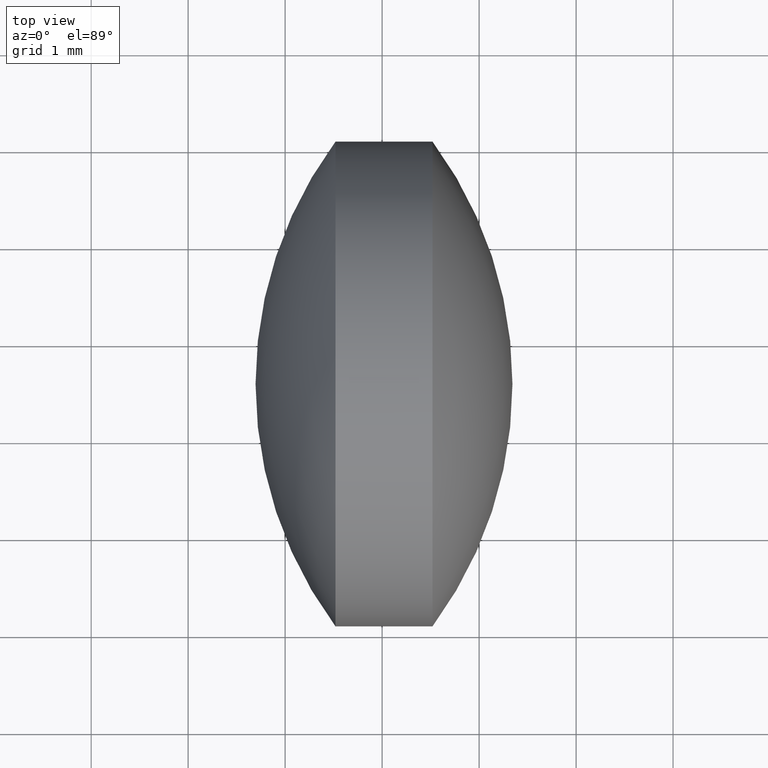
[diagram: clean part render]
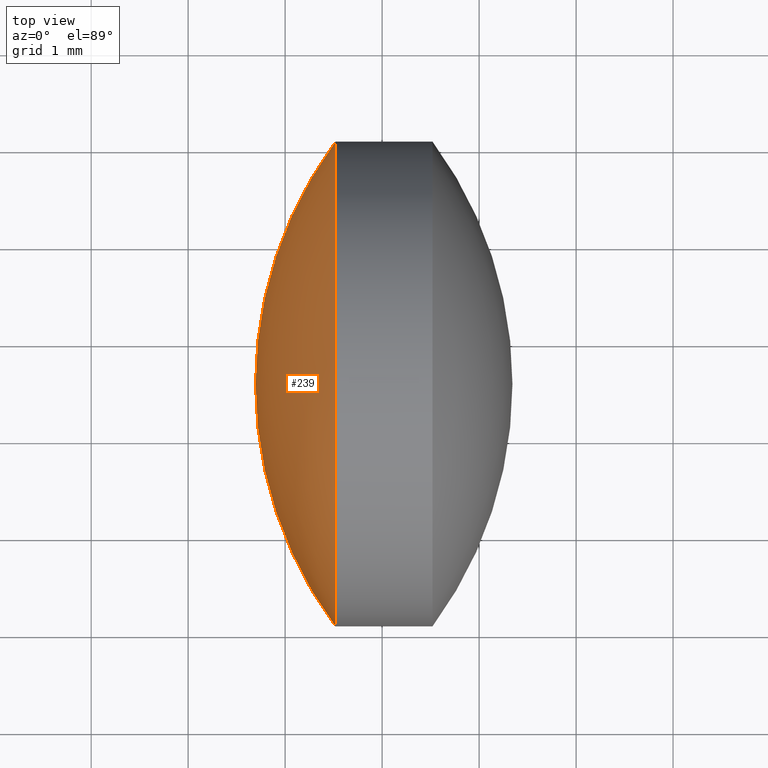
[diagram: same view with one face highlighted and labeled with its STEP entity id]
A machine part, top view. The second image highlights one B-rep face of the part: STEP entity #239.
In plain terms, the highlighted spherical surface has radius 4.202 mm.
Its self-contained STEP definition (entity closure, byte-faithful):
#1 = AXIS2_PLACEMENT_3D ( 'NONE', #3, #6, #34 ) ;
#3 = CARTESIAN_POINT ( 'NONE',  ( 19.89670792681433700, 9.570100988815884300, 0.0000000000000000000 ) ) ;
#5 = CARTESIAN_POINT ( 'NONE',  ( 16.51932948320126100, 7.070100988815897700, -3.061616997868377200E-016 ) ) ;
#6 = DIRECTION ( 'NONE',  ( 0.0000000000000000000, 0.0000000000000000000, -1.000000000000000000 ) ) ;
#21 = VERTEX_POINT ( 'NONE', #74 ) ;
#30 = DIRECTION ( 'NONE',  ( 0.0000000000000000000, 1.000000000000000000, 1.224646799147353000E-016 ) ) ;
#34 = DIRECTION ( 'NONE',  ( 2.477005208354672900E-015, 1.000000000000000000, 0.0000000000000000000 ) ) ;
#45 = EDGE_CURVE ( 'NONE', #286, #102, #300, .T. ) ;
#49 = DIRECTION ( 'NONE',  ( 2.986685838959564500E-031, 1.224646799147353200E-016, -1.000000000000000000 ) ) ;
#51 = AXIS2_PLACEMENT_3D ( 'NONE', #81, #101, #262 ) ;
#56 = DIRECTION ( 'NONE',  ( -2.775557561562891000E-015, -1.000000000000000000, 0.0000000000000000000 ) ) ;
#74 = CARTESIAN_POINT ( 'NONE',  ( 16.51932948320127200, 12.07010098881588600, 0.0000000000000000000 ) ) ;
#77 = CARTESIAN_POINT ( 'NONE',  ( 19.89670792681433700, 9.570100988815884300, 0.0000000000000000000 ) ) ;
#81 = CARTESIAN_POINT ( 'NONE',  ( 19.89670792681433700, 9.570100988815884300, 0.0000000000000000000 ) ) ;
#101 = DIRECTION ( 'NONE',  ( 0.0000000000000000000, 0.0000000000000000000, 1.000000000000000000 ) ) ;
#102 = VERTEX_POINT ( 'NONE', #303 ) ;
#142 = FACE_OUTER_BOUND ( 'NONE', #241, .T. ) ;
#146 = ORIENTED_EDGE ( 'NONE', *, *, #258, .T. ) ;
#172 = EDGE_CURVE ( 'NONE', #286, #21, #276, .T. ) ;
#186 = ORIENTED_EDGE ( 'NONE', *, *, #172, .T. ) ;
#193 = DIRECTION ( 'NONE',  ( -1.000000000000000000, 2.438814065442388400E-015, -0.0000000000000000000 ) ) ;
#198 = AXIS2_PLACEMENT_3D ( 'NONE', #220, #193, #56 ) ;
#220 = CARTESIAN_POINT ( 'NONE',  ( 16.51932948320126500, 9.570100988815889700, 0.0000000000000000000 ) ) ;
#226 = AXIS2_PLACEMENT_3D ( 'NONE', #77, #49, #30 ) ;
#239 = ADVANCED_FACE ( 'NONE', ( #142 ), #269, .T. ) ;
#241 = EDGE_LOOP ( 'NONE', ( #255, #186, #146 ) ) ;
#251 = CIRCLE ( 'NONE', #51, 4.201985858065468100 ) ;
#255 = ORIENTED_EDGE ( 'NONE', *, *, #45, .F. ) ;
#258 = EDGE_CURVE ( 'NONE', #21, #102, #251, .T. ) ;
#262 = DIRECTION ( 'NONE',  ( 1.000000000000000000, 0.0000000000000000000, 0.0000000000000000000 ) ) ;
#269 = SPHERICAL_SURFACE ( 'NONE', #1, 4.201985858065468100 ) ;
#276 = CIRCLE ( 'NONE', #198, 2.500000000000000400 ) ;
#286 = VERTEX_POINT ( 'NONE', #5 ) ;
#300 = CIRCLE ( 'NONE', #226, 4.201985858065468100 ) ;
#303 = CARTESIAN_POINT ( 'NONE',  ( 15.69472206874886800, 9.570100988815895000, 0.0000000000000000000 ) ) ;